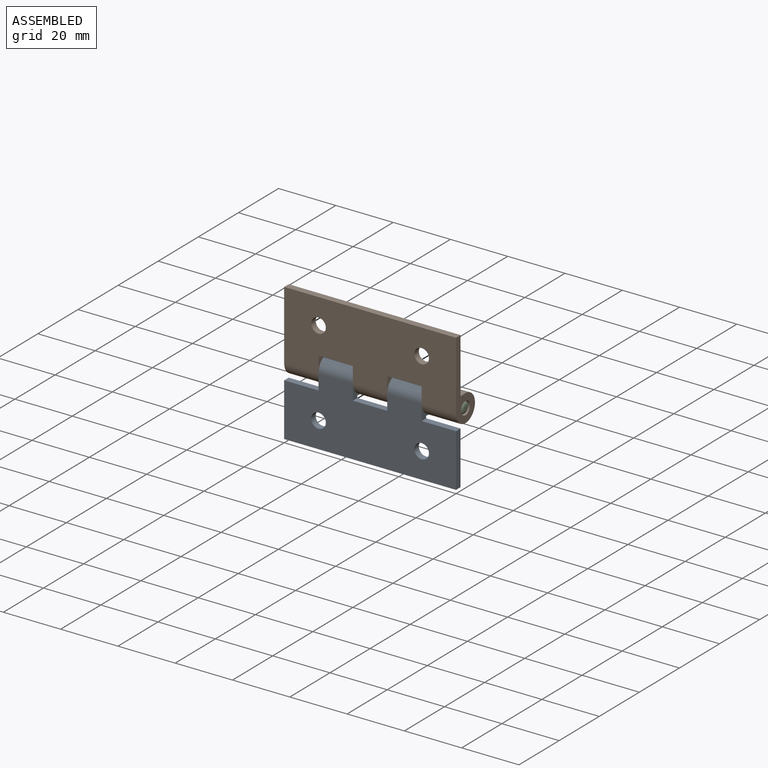
[diagram: assembled view]
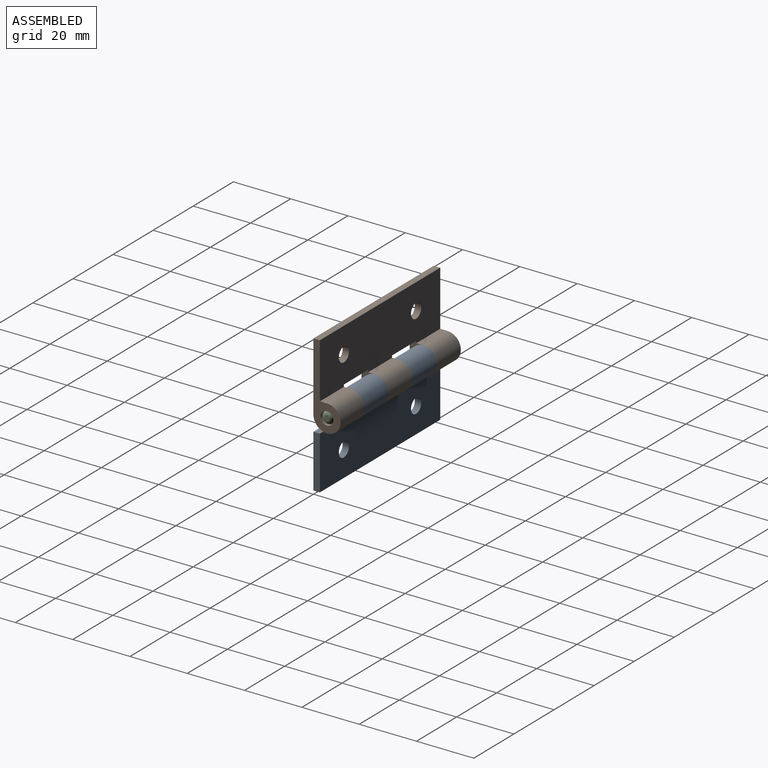
[diagram: assembled view, second angle]
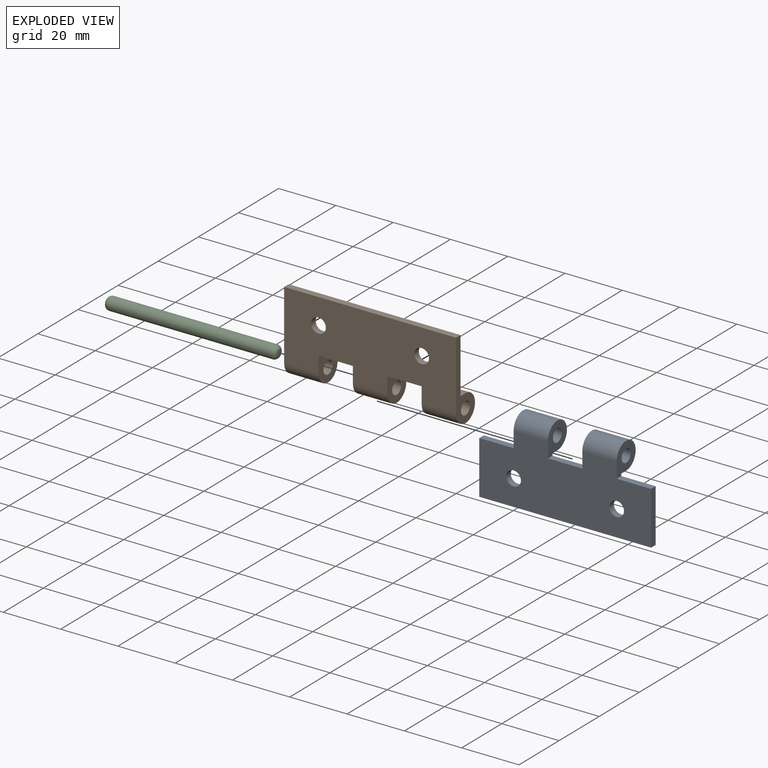
[diagram: exploded view]
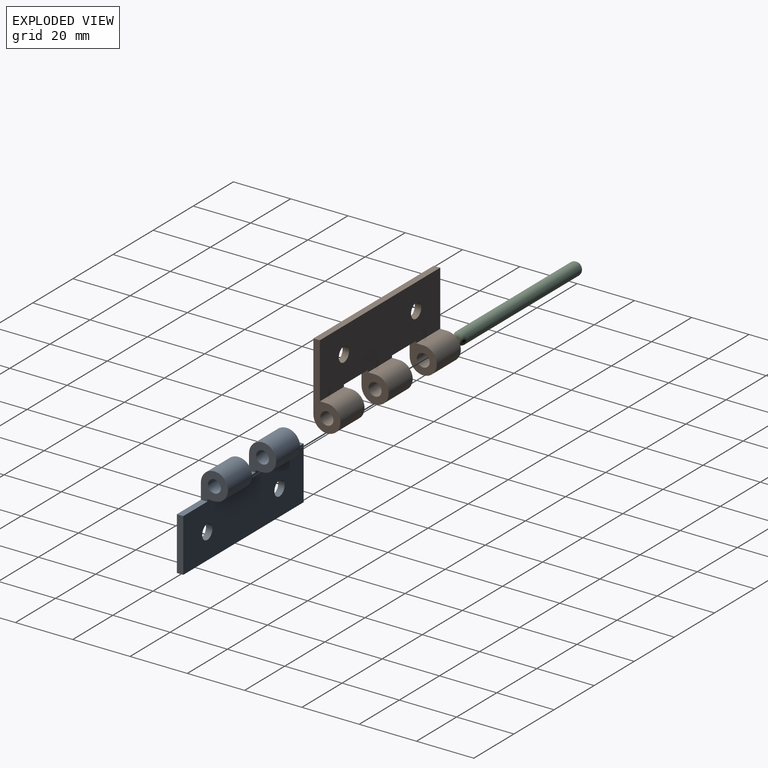
[diagram: exploded view, second angle]
ASSEMBLY  parts=3 mates=2
PART A: 20 faces, bbox 60x9.5x28.7 mm
  f0: cylinder r=2.55mm len=5.1mm, axis (0,-1,0), area 36mm2, adj f16,f17
  f1: cylinder r=2.55mm len=5.1mm, axis (0,-1,0), area 36mm2, adj f16,f17
  f2: cylinder r=2.25mm len=12mm, axis (-1,0,0), area 169.6mm2, adj f12,f13
  f3: cylinder r=4.72mm len=12mm, axis (-1,0,0), area 267.2mm2, adj f12,f13,f17,f19
  f4: cylinder r=2.25mm len=12mm, axis (-1,0,0), area 169.6mm2, adj f9,f10
  f5: cylinder r=4.72mm len=12mm, axis (-1,0,0), area 267.2mm2, adj f9,f10,f17,f18
  f6: plane 60x2.25mm, normal (0,0,-1), area 135mm2, adj f7,f15,f16,f17
  f7: plane 18.53x2.25mm, normal (-1,0,0), area 41.7mm2, adj f6,f8,f16,f17
  f8: plane 12x2.25mm, normal (0,0,1), area 27mm2, adj f7,f9,f16,f17
  f9: plane 10.2x9.45mm, normal (-1,0,0), area 60.7mm2, adj f4,f5,f8,f16,f17,f18
  f10: plane 10.2x9.45mm, normal (1,0,0), area 60.7mm2, adj f4,f5,f11,f16,f17,f18
  f11: plane 12x2.25mm, normal (0,0,1), area 27mm2, adj f10,f12,f16,f17
  f12: plane 10.2x9.45mm, normal (-1,0,0), area 60.7mm2, adj f2,f3,f11,f16,f17,f19
  f13: plane 10.2x9.45mm, normal (1,0,0), area 60.7mm2, adj f2,f3,f14,f16,f17,f19
  f14: plane 12x2.25mm, normal (0,0,1), area 27mm2, adj f13,f15,f16,f17
  f15: plane 18.53x2.25mm, normal (1,0,0), area 41.7mm2, adj f6,f14,f16,f17
  f16: plane 60x19.28mm, normal (0,1,0), area 1088.6mm2, adj f0,f1,f6,f7,f8,f9,f10,f11
  f17: plane 60x24mm, normal (0,-1,0), area 1202mm2, adj f0,f1,f3,f5,f6,f7,f8,f9
  f18: plane 12x2.48mm, normal (0,0,-1), area 29.7mm2, adj f5,f9,f10,f16
  f19: plane 12x2.48mm, normal (0,0,-1), area 29.7mm2, adj f3,f12,f13,f16
PART B: 22 faces, bbox 60x9.5x28.7 mm
  f0: cylinder r=2.55mm len=5.1mm, axis (0,-1,0), area 36mm2, adj f14,f15
  f1: cylinder r=2.55mm len=5.1mm, axis (0,-1,0), area 36mm2, adj f14,f15
  f2: cylinder r=2.25mm len=12mm, axis (-1,0,0), area 169.6mm2, adj f7,f8
  f3: cylinder r=2.25mm len=12mm, axis (-1,0,0), area 169.6mm2, adj f10,f11
  f4: cylinder r=2.25mm len=12mm, axis (-1,0,0), area 169.6mm2, adj f5,f13
  f5: plane 28.73x9.45mm, normal (-1,0,0), area 102.4mm2, adj f4,f6,f14,f15,f16,f17
  f6: plane 60x2.25mm, normal (0,0,1), area 135mm2, adj f5,f7,f14,f15
  f7: plane 28.73x9.45mm, normal (1,0,0), area 102.4mm2, adj f2,f6,f14,f15,f20,f21
  f8: plane 10.2x9.45mm, normal (-1,0,0), area 60.7mm2, adj f2,f9,f14,f15,f20,f21
  f9: plane 12x2.25mm, normal (0,0,-1), area 27mm2, adj f8,f10,f14,f15
  f10: plane 10.2x9.45mm, normal (1,0,0), area 60.7mm2, adj f3,f9,f14,f15,f18,f19
  f11: plane 10.2x9.45mm, normal (-1,0,0), area 60.7mm2, adj f3,f12,f14,f15,f18,f19
  f12: plane 12x2.25mm, normal (0,0,-1), area 27mm2, adj f11,f13,f14,f15
  f13: plane 10.2x9.45mm, normal (1,0,0), area 60.7mm2, adj f4,f12,f14,f15,f16,f17
  f14: plane 60x19.28mm, normal (0,1,0), area 1097.6mm2, adj f0,f1,f5,f6,f7,f8,f9,f10
  f15: plane 60x24mm, normal (0,-1,0), area 1267.7mm2, adj f0,f1,f5,f6,f7,f8,f9,f10
  f16: cylinder r=4.72mm len=12mm, axis (-1,0,0), area 267.2mm2, adj f5,f13,f15,f17
  f17: plane 12x2.48mm, normal (0,0,1), area 29.7mm2, adj f5,f13,f14,f16
  f18: cylinder r=4.72mm len=12mm, axis (-1,0,0), area 267.2mm2, adj f10,f11,f15,f19
  f19: plane 12x2.48mm, normal (0,0,1), area 29.7mm2, adj f10,f11,f14,f18
  f20: cylinder r=4.72mm len=12mm, axis (-1,0,0), area 267.2mm2, adj f7,f8,f15,f21
  f21: plane 12x2.48mm, normal (0,0,1), area 29.7mm2, adj f7,f8,f14,f20
PART C: 5 faces, bbox 60x4.5x4.5 mm
  f0: torus R=0.75mm, axis (-1,0,0), area 25.2mm2, adj f1,f4
  f1: cylinder r=2.25mm len=57mm, axis (-1,0,0), area 805.8mm2, adj f0,f2
  f2: torus R=0.75mm, axis (-1,0,0), area 25.2mm2, adj f1,f3
  f3: plane 1.5x1.5mm, normal (-1,0,0), area 1.8mm2, adj f2
  f4: plane 1.5x1.5mm, normal (1,0,0), area 1.8mm2, adj f0
PLACE A t=(0,0,23.6)mm
PLACE B t=(0,0,23.6)mm
PLACE C t=(0,4.72,23.6)mm
MATE revolute A.f2 <-> B.f2  axis (1,0,0) through (24,4.73,23.6)mm
MATE revolute C.f0 <-> B.f2  axis (-1,0,0) through (30,4.72,23.6)mm
